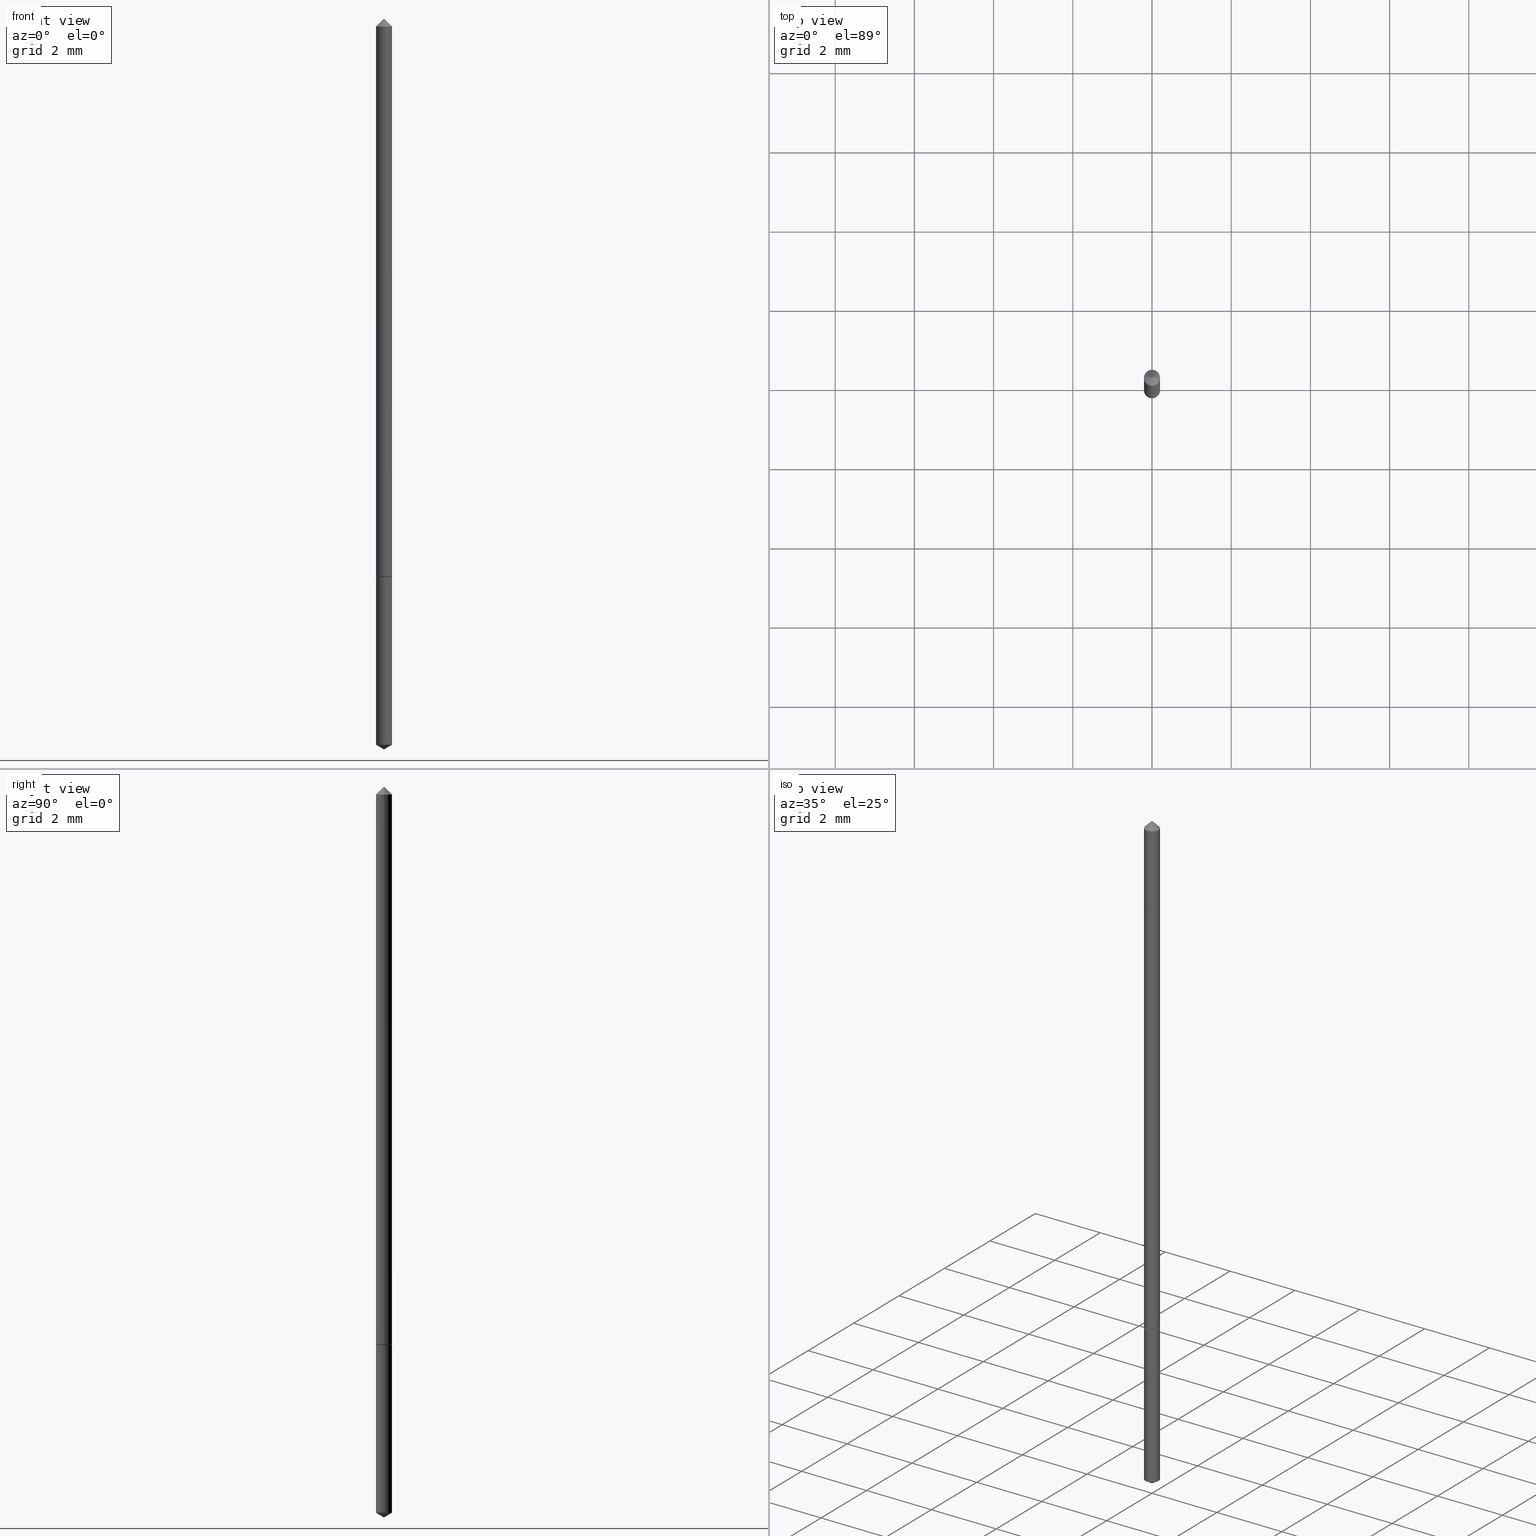
[diagram: canonical four-view strip — front | top / right | iso, engineering-drawing reading convention]
A machine part, canonical four-view strip (front | top / right | iso — engineering-drawing reading convention). The complete STEP part file that produces these views, byte-faithful:
ISO-10303-21;
HEADER;
FILE_DESCRIPTION (( 'STEP AP203' ),
    '1' );
FILE_NAME ('57079.STEP',
    '2024-04-22T21:49:16',
    ( '' ),
    ( '' ),
    'SwSTEP 2.0',
    'SolidWorks 2023',
    '' );
FILE_SCHEMA (( 'CONFIG_CONTROL_DESIGN' ));
ENDSEC;

DATA;
#1 = CARTESIAN_POINT ( 'NONE',  ( 1.414703704378101416E-29, -2.019821954520759698E-15, -0.5785000000000000142 ) ) ;
#2 = DIRECTION ( 'NONE',  ( -2.445468806185136597E-29, 3.491481338843145583E-15, 1.000000000000000000 ) ) ;
#3 = EDGE_LOOP ( 'NONE', ( #114, #8 ) ) ;
#4 = ADVANCED_FACE ( 'NONE', ( #286 ), #190, .T. ) ;
#5 = ORIENTED_EDGE ( 'NONE', *, *, #326, .F. ) ;
#6 = VECTOR ( 'NONE', #196, 39.37007874015748143 ) ;
#7 = ORIENTED_EDGE ( 'NONE', *, *, #63, .F. ) ;
#8 = ORIENTED_EDGE ( 'NONE', *, *, #22, .T. ) ;
#9 = PERSON_AND_ORGANIZATION ( #206, #94 ) ;
#10 = ORIENTED_EDGE ( 'NONE', *, *, #298, .T. ) ;
#11 = AXIS2_PLACEMENT_3D ( 'NONE', #157, #304, #21 ) ;
#12 = PERSON_AND_ORGANIZATION_ROLE ( 'creator' ) ;
#13 = LOCAL_TIME ( 17, 49, 16.00000000000000000, #353 ) ;
#14 = APPROVAL_DATE_TIME ( #264, #362 ) ;
#15 = DIRECTION ( 'NONE',  ( -5.985567269336008333E-15, -0.8571673007021195501, 0.5150380749100419431 ) ) ;
#16 = CARTESIAN_POINT ( 'NONE',  ( 0.000000000000000000, 0.000000000000000000, 0.000000000000000000 ) ) ;
#17 = FACE_OUTER_BOUND ( 'NONE', #279, .T. ) ;
#18 = DIRECTION ( 'NONE',  ( -6.982962677686266711E-15, -1.000000000000000000, 0.000000000000000000 ) ) ;
#19 = CARTESIAN_POINT ( 'NONE',  ( -0.007500000000000090795, -1.963882022164640936E-15, -0.5785000000000000142 ) ) ;
#20 = APPROVAL ( #100, 'UNSPECIFIED' ) ;
#21 = DIRECTION ( 'NONE',  ( -6.982962677686266711E-15, -1.000000000000000000, 0.000000000000000000 ) ) ;
#22 = EDGE_CURVE ( 'NONE', #256, #231, #147, .T. ) ;
#23 = VECTOR ( 'NONE', #73, 39.37007874015748143 ) ;
#24 = DIRECTION ( 'NONE',  ( -6.982962677686267499E-15, -1.000000000000000000, 3.468864327941454980E-15 ) ) ;
#25 = ORIENTED_EDGE ( 'NONE', *, *, #258, .F. ) ;
#26 = CARTESIAN_POINT ( 'NONE',  ( 0.000000000000000000, 0.000000000000000000, 0.000000000000000000 ) ) ;
#27 = ORIENTED_EDGE ( 'NONE', *, *, #263, .F. ) ;
#28 = CARTESIAN_POINT ( 'NONE',  ( -9.446903347794172419E-28, 1.348057181952475766E-13, 38.62007874015748143 ) ) ;
#29 = ORIENTED_EDGE ( 'NONE', *, *, #129, .F. ) ;
#30 = AXIS2_PLACEMENT_3D ( 'NONE', #245, #185, #268 ) ;
#31 = APPROVAL_PERSON_ORGANIZATION ( #241, #163, #322 ) ;
#32 = DIRECTION ( 'NONE',  ( -2.445468806185136597E-29, 3.491481338843145583E-15, 1.000000000000000000 ) ) ;
#33 = ORIENTED_EDGE ( 'NONE', *, *, #112, .T. ) ;
#34 = CARTESIAN_POINT ( 'NONE',  ( 1.413480969975009175E-29, -2.018076213851338589E-15, -0.5780000000000000693 ) ) ;
#35 = ORIENTED_EDGE ( 'NONE', *, *, #194, .F. ) ;
#36 = APPROVAL_ROLE ( '' ) ;
#37 = DIRECTION ( 'NONE',  ( -2.446102391056605084E-29, 3.490574009245791295E-15, 1.000000000000000000 ) ) ;
#38 = MANIFOLD_SOLID_BREP ( 'Body-Move/Copy2[2]', #254 ) ;
#39 = CALENDAR_DATE ( 2024, 22, 4 ) ;
#40 = CARTESIAN_POINT ( 'NONE',  ( 1.414703704378101696E-29, -2.019821954520759698E-15, -0.5785000000000000142 ) ) ;
#41 = DIRECTION ( 'NONE',  ( -2.445468806185136597E-29, 3.491481338843145583E-15, 1.000000000000000000 ) ) ;
#42 = LINE ( 'NONE', #121, #287 ) ;
#43 = CARTESIAN_POINT ( 'NONE',  ( -9.446903347794172419E-28, 1.348057181952475766E-13, 38.62007874015748143 ) ) ;
#44 = VECTOR ( 'NONE', #225, 39.37007874015748143 ) ;
#45 = DIRECTION ( 'NONE',  ( -6.982962677686266711E-15, -1.000000000000000000, 0.000000000000000000 ) ) ;
#46 = ORIENTED_EDGE ( 'NONE', *, *, #88, .T. ) ;
#47 = ADVANCED_FACE ( 'NONE', ( #270 ), #97, .T. ) ;
#48 = CARTESIAN_POINT ( 'NONE',  ( 1.834576793292453953E-29, -2.617930506934343570E-15, -0.7500000000000001110 ) ) ;
#49 = LINE ( 'NONE', #191, #44 ) ;
#50 = DIRECTION ( 'NONE',  ( 2.446102391056604803E-29, -3.490574009245791295E-15, -1.000000000000000000 ) ) ;
#51 = CARTESIAN_POINT ( 'NONE',  ( 5.611197815861457149E-31, -8.224406925062875738E-17, -0.02325000000000014555 ) ) ;
#52 = EDGE_LOOP ( 'NONE', ( #312, #177, #237, #363 ) ) ;
#53 = CC_DESIGN_APPROVAL ( #163, ( #328 ) ) ;
#54 = CARTESIAN_POINT ( 'NONE',  ( 1.414703704378101416E-29, -2.019821954520759698E-15, -0.5785000000000000142 ) ) ;
#55 = ORIENTED_EDGE ( 'NONE', *, *, #248, .T. ) ;
#56 = CARTESIAN_POINT ( 'NONE',  ( 1.414703704378101696E-29, -2.019821954520759698E-15, -0.5785000000000000142 ) ) ;
#57 = PRODUCT_DEFINITION ( 'UNKNOWN', '', #328, #355 ) ;
#58 = DIRECTION ( 'NONE',  ( 1.000000000000000000, -6.982962677686265922E-15, 4.876176775795935793E-29 ) ) ;
#59 = ORIENTED_EDGE ( 'NONE', *, *, #63, .T. ) ;
#60 = ORIENTED_EDGE ( 'NONE', *, *, #263, .T. ) ;
#61 = CARTESIAN_POINT ( 'NONE',  ( 1.414703704378101696E-29, -2.019821954520759698E-15, -0.5785000000000000142 ) ) ;
#62 = APPLICATION_PROTOCOL_DEFINITION ( 'international standard', 'config_control_design', 1994, #297 ) ;
#63 = EDGE_CURVE ( 'NONE', #172, #199, #178, .T. ) ;
#64 = AXIS2_PLACEMENT_3D ( 'NONE', #117, #247, #296 ) ;
#65 = AXIS2_PLACEMENT_3D ( 'NONE', #347, #95, #351 ) ;
#66 = PERSON_AND_ORGANIZATION ( #206, #94 ) ;
#67 = CC_DESIGN_APPROVAL ( #362, ( #57 ) ) ;
#68 = DIRECTION ( 'NONE',  ( -1.000000000000000000, 6.982962677686266711E-15, 0.000000000000000000 ) ) ;
#69 = COORDINATED_UNIVERSAL_TIME_OFFSET ( 5, 0, .BEHIND. ) ;
#70 = DIRECTION ( 'NONE',  ( -6.982962677686267499E-15, -1.000000000000000000, 3.468864327941454980E-15 ) ) ;
#71 = UNCERTAINTY_MEASURE_WITH_UNIT (LENGTH_MEASURE( 1.000000000000000082E-05 ), #207, 'distance_accuracy_value', 'NONE');
#72 = CALENDAR_DATE ( 2024, 22, 4 ) ;
#73 = DIRECTION ( 'NONE',  ( 0.7071067811865450192, -7.319954787623246579E-15, -0.7071067811865500152 ) ) ;
#74 = APPLICATION_CONTEXT ( 'configuration controlled 3d designs of mechanical parts and assemblies' ) ;
#75 = VECTOR ( 'NONE', #15, 39.37007874015748143 ) ;
#76 = CIRCLE ( 'NONE', #139, 0.008000000000000071290 ) ;
#77 = DIRECTION ( 'NONE',  ( -0.7071067811866048602, 7.493145998870562419E-15, 0.7071067811864901742 ) ) ;
#78 = LINE ( 'NONE', #335, #232 ) ;
#79 = AXIS2_PLACEMENT_3D ( 'NONE', #318, #349, #18 ) ;
#80 = CARTESIAN_POINT ( 'NONE',  ( 5.684341886082627079E-17, 0.007999999999997980948, -0.5785000000000000142 ) ) ;
#81 = CC_DESIGN_DATE_AND_TIME_ASSIGNMENT ( #243, #295, ( #219 ) ) ;
#82 = LINE ( 'NONE', #336, #6 ) ;
#83 = ORIENTED_EDGE ( 'NONE', *, *, #305, .T. ) ;
#84 = ADVANCED_FACE ( 'NONE', ( #216 ), #130, .T. ) ;
#85 = DIRECTION ( 'NONE',  ( 1.000000000000000000, -6.982962677686270655E-15, 0.000000000000000000 ) ) ;
#86 = LINE ( 'NONE', #342, #203 ) ;
#87 = ORIENTED_EDGE ( 'NONE', *, *, #112, .F. ) ;
#88 = EDGE_CURVE ( 'NONE', #260, #330, #281, .T. ) ;
#89 = CYLINDRICAL_SURFACE ( 'NONE', #154, 0.008000000000000036596 ) ;
#90 = APPROVAL_DATE_TIME ( #348, #163 ) ;
#91 = LINE ( 'NONE', #153, #357 ) ;
#92 = PERSON_AND_ORGANIZATION ( #206, #94 ) ;
#93 = DIRECTION ( 'NONE',  ( -2.446102391056605084E-29, 3.490574009245791295E-15, 1.000000000000000000 ) ) ;
#94 = ORGANIZATION ( 'UNSPECIFIED', 'UNSPECIFIED', '' ) ;
#95 = DIRECTION ( 'NONE',  ( -2.445468806185136597E-29, 3.491481338843145583E-15, 1.000000000000000000 ) ) ;
#96 = CALENDAR_DATE ( 2024, 22, 4 ) ;
#97 = CYLINDRICAL_SURFACE ( 'NONE', #259, 0.008000000000000000167 ) ;
#98 = ORIENTED_EDGE ( 'NONE', *, *, #129, .T. ) ;
#99 = EDGE_CURVE ( 'NONE', #169, #343, #246, .T. ) ;
#100 = APPROVAL_STATUS ( 'not_yet_approved' ) ;
#101 = LINE ( 'NONE', #329, #198 ) ;
#102 = ORIENTED_EDGE ( 'NONE', *, *, #179, .F. ) ;
#103 = CIRCLE ( 'NONE', #11, 0.008000000000000000167 ) ;
#104 = ADVANCED_FACE ( 'NONE', ( #155 ), #213, .T. ) ;
#105 = DIRECTION ( 'NONE',  ( -0.7071067811865450192, 2.468850131082230634E-15, -0.7071067811865500152 ) ) ;
#106 = ORIENTED_EDGE ( 'NONE', *, *, #156, .T. ) ;
#107 = PRODUCT ( '57079', '57079', '', ( #290 ) ) ;
#108 = DIRECTION ( 'NONE',  ( 1.000000000000000000, -6.982962677686270655E-15, 0.000000000000000000 ) ) ;
#109 = EDGE_LOOP ( 'NONE', ( #35, #141, #289, #128 ) ) ;
#110 = DIRECTION ( 'NONE',  ( 1.000000000000000000, -6.982962677686270655E-15, 0.000000000000000000 ) ) ;
#111 = VERTEX_POINT ( 'NONE', #293 ) ;
#112 = EDGE_CURVE ( 'NONE', #257, #330, #146, .T. ) ;
#113 = DIRECTION ( 'NONE',  ( -2.446102391056605084E-29, 3.490574009245791295E-15, 1.000000000000000000 ) ) ;
#114 = ORIENTED_EDGE ( 'NONE', *, *, #151, .T. ) ;
#115 = COORDINATED_UNIVERSAL_TIME_OFFSET ( 5, 0, .BEHIND. ) ;
#116 = ORIENTED_EDGE ( 'NONE', *, *, #298, .F. ) ;
#117 = CARTESIAN_POINT ( 'NONE',  ( 7.642090019328601786E-31, -1.091087918388490144E-16, -0.03125000000000020123 ) ) ;
#118 = SECURITY_CLASSIFICATION_LEVEL ( 'unclassified' ) ;
#119 = DIRECTION ( 'NONE',  ( -6.982962677686266711E-15, -1.000000000000000000, 0.000000000000000000 ) ) ;
#120 = ADVANCED_FACE ( 'NONE', ( #124 ), #294, .T. ) ;
#121 = CARTESIAN_POINT ( 'NONE',  ( 1.834583221343144864E-29, -2.617930506934343570E-15, -0.7500000000000001110 ) ) ;
#122 = CC_DESIGN_SECURITY_CLASSIFICATION ( #219, ( #328 ) ) ;
#123 = APPLICATION_PROTOCOL_DEFINITION ( 'international standard', 'config_control_design', 1994, #74 ) ;
#124 = FACE_OUTER_BOUND ( 'NONE', #313, .T. ) ;
#125 = CARTESIAN_POINT ( 'NONE',  ( -5.586370142147598546E-17, -0.008000000000002021119, -0.5785000000000000142 ) ) ;
#126 = APPROVAL_ROLE ( '' ) ;
#127 = CARTESIAN_POINT ( 'NONE',  ( -0.008000000000000003636, -1.006749083984283610E-15, -0.03125000000000020123 ) ) ;
#128 = ORIENTED_EDGE ( 'NONE', *, *, #22, .F. ) ;
#129 = EDGE_CURVE ( 'NONE', #197, #169, #291, .T. ) ;
#130 = CONICAL_SURFACE ( 'NONE', #30, 0.008000000000000003636, 0.7853981633974447263 ) ;
#131 = FACE_OUTER_BOUND ( 'NONE', #285, .T. ) ;
#132 = CC_DESIGN_PERSON_AND_ORGANIZATION_ASSIGNMENT ( #66, #300, ( #328 ) ) ;
#133 = CARTESIAN_POINT ( 'NONE',  ( 0.007500000000000090795, -2.072194174603407567E-15, -0.5785000000000000142 ) ) ;
#134 = LOCAL_TIME ( 17, 49, 16.00000000000000000, #145 ) ;
#135 = EDGE_LOOP ( 'NONE', ( #116, #7 ) ) ;
#136 = ORIENTED_EDGE ( 'NONE', *, *, #339, .T. ) ;
#137 = FACE_OUTER_BOUND ( 'NONE', #175, .T. ) ;
#138 = DIRECTION ( 'NONE',  ( -2.445468806185136597E-29, 3.491481338843145583E-15, 1.000000000000000000 ) ) ;
#139 = AXIS2_PLACEMENT_3D ( 'NONE', #34, #2, #108 ) ;
#140 = DIRECTION ( 'NONE',  ( -2.446102391056605084E-29, 3.490574009245791295E-15, 1.000000000000000000 ) ) ;
#141 = ORIENTED_EDGE ( 'NONE', *, *, #258, .T. ) ;
#142 =( NAMED_UNIT ( * ) SI_UNIT ( $, .STERADIAN. ) SOLID_ANGLE_UNIT ( ) );
#143 = CC_DESIGN_PERSON_AND_ORGANIZATION_ASSIGNMENT ( #9, #205, ( #219 ) ) ;
#144 = EDGE_LOOP ( 'NONE', ( #337, #136, #102, #341 ) ) ;
#145 = COORDINATED_UNIVERSAL_TIME_OFFSET ( 5, 0, .BEHIND. ) ;
#146 = LINE ( 'NONE', #316, #23 ) ;
#147 = CIRCLE ( 'NONE', #334, 0.008000000000000000167 ) ;
#148 = AXIS2_PLACEMENT_3D ( 'NONE', #361, #331, #306 ) ;
#149 =( NAMED_UNIT ( * ) PLANE_ANGLE_UNIT ( ) SI_UNIT ( $, .RADIAN. ) );
#150 = CARTESIAN_POINT ( 'NONE',  ( 7.642090019328601786E-31, -1.091087918388490144E-16, -0.03125000000000020123 ) ) ;
#151 = EDGE_CURVE ( 'NONE', #231, #256, #314, .T. ) ;
#152 = ADVANCED_BREP_SHAPE_REPRESENTATION ( '57079', ( #158, #38, #364 ), #282 ) ;
#153 = CARTESIAN_POINT ( 'NONE',  ( -5.586370142147598546E-17, -0.008000000000002021119, -0.5785000000000000142 ) ) ;
#154 = AXIS2_PLACEMENT_3D ( 'NONE', #218, #278, #333 ) ;
#155 = FACE_OUTER_BOUND ( 'NONE', #109, .T. ) ;
#156 = EDGE_CURVE ( 'NONE', #197, #343, #42, .T. ) ;
#157 = CARTESIAN_POINT ( 'NONE',  ( 1.822452131669149345E-29, -2.601676609426758371E-15, -0.7451931150477797416 ) ) ;
#158 = MANIFOLD_SOLID_BREP ( 'Body-Move/Copy2[1]', #345 ) ;
#159 = CIRCLE ( 'NONE', #228, 0.008000000000000003636 ) ;
#160 = AXIS2_PLACEMENT_3D ( 'NONE', #28, #140, #24 ) ;
#161 = CARTESIAN_POINT ( 'NONE',  ( -0.008000000000000071290, -1.961232794990530130E-15, -0.5780000000000000693 ) ) ;
#162 = EDGE_LOOP ( 'NONE', ( #10, #283, #5, #27 ) ) ;
#163 = APPROVAL ( #186, 'UNSPECIFIED' ) ;
#164 = DATE_AND_TIME ( #226, #204 ) ;
#165 = CARTESIAN_POINT ( 'NONE',  ( 1.414703704378101696E-29, -2.019821954520759698E-15, -0.5785000000000000142 ) ) ;
#166 = CARTESIAN_POINT ( 'NONE',  ( -0.008000000000000071290, -1.961232794990530130E-15, -0.5780000000000000693 ) ) ;
#167 = EDGE_CURVE ( 'NONE', #169, #231, #91, .T. ) ;
#168 = VECTOR ( 'NONE', #77, 39.37007874015748143 ) ;
#169 = VERTEX_POINT ( 'NONE', #323 ) ;
#170 = LOCAL_TIME ( 17, 49, 16.00000000000000000, #69 ) ;
#171 = CARTESIAN_POINT ( 'NONE',  ( 5.684341886082623381E-17, 0.007999999999997398081, -0.7451931150477797416 ) ) ;
#172 = VERTEX_POINT ( 'NONE', #19 ) ;
#173 = ADVANCED_FACE ( 'NONE', ( #17 ), #327, .T. ) ;
#174 = CARTESIAN_POINT ( 'NONE',  ( 1.413480969975009175E-29, -2.018076213851338589E-15, -0.5780000000000000693 ) ) ;
#175 = EDGE_LOOP ( 'NONE', ( #227, #83, #55, #309 ) ) ;
#176 = DIRECTION ( 'NONE',  ( 1.000000000000000000, -6.982962677686280910E-15, 0.000000000000000000 ) ) ;
#177 = ORIENTED_EDGE ( 'NONE', *, *, #194, .T. ) ;
#178 = CIRCLE ( 'NONE', #65, 0.007500000000000090795 ) ;
#179 = EDGE_CURVE ( 'NONE', #330, #260, #159, .T. ) ;
#180 = ORIENTED_EDGE ( 'NONE', *, *, #305, .F. ) ;
#181 = APPROVAL_STATUS ( 'not_yet_approved' ) ;
#182 = CONICAL_SURFACE ( 'NONE', #148, 0.008000000000000071290, 0.7853981633975294363 ) ;
#183 = CIRCLE ( 'NONE', #265, 0.007500000000000090795 ) ;
#184 = DIRECTION ( 'NONE',  ( 1.000000000000000000, -6.982962677686267499E-15, 4.876176775795935793E-29 ) ) ;
#185 = DIRECTION ( 'NONE',  ( 2.445468806185136597E-29, -3.491481338843145583E-15, -1.000000000000000000 ) ) ;
#186 = APPROVAL_STATUS ( 'not_yet_approved' ) ;
#187 = DIRECTION ( 'NONE',  ( -2.445468806185136597E-29, 3.491481338843145583E-15, 1.000000000000000000 ) ) ;
#188 = PERSON_AND_ORGANIZATION_ROLE ( 'creator' ) ;
#189 = CARTESIAN_POINT ( 'NONE',  ( 1.414703704378101696E-29, -2.019821954520759698E-15, -0.5785000000000000142 ) ) ;
#190 = CONICAL_SURFACE ( 'NONE', #251, 0.008000000000000071290, 0.7853981633975294363 ) ;
#191 = CARTESIAN_POINT ( 'NONE',  ( 0.008000000000000036596, -5.586370142149039450E-17, 3.900941420636766553E-31 ) ) ;
#192 = DIRECTION ( 'NONE',  ( 6.982962677686265922E-15, 1.000000000000000000, -3.490574009245791295E-15 ) ) ;
#193 = ADVANCED_FACE ( 'NONE', ( #239 ), #89, .T. ) ;
#194 = EDGE_CURVE ( 'NONE', #343, #256, #78, .T. ) ;
#195 = FACE_OUTER_BOUND ( 'NONE', #135, .T. ) ;
#196 = DIRECTION ( 'NONE',  ( -2.445468806185136877E-29, 3.491481338843145188E-15, 1.000000000000000000 ) ) ;
#197 = VERTEX_POINT ( 'NONE', #48 ) ;
#198 = VECTOR ( 'NONE', #229, 39.37007874015748143 ) ;
#199 = VERTEX_POINT ( 'NONE', #133 ) ;
#200 = ORIENTED_EDGE ( 'NONE', *, *, #99, .F. ) ;
#201 = CC_DESIGN_PERSON_AND_ORGANIZATION_ASSIGNMENT ( #346, #212, ( #107 ) ) ;
#202 = ORIENTED_EDGE ( 'NONE', *, *, #280, .F. ) ;
#203 = VECTOR ( 'NONE', #105, 39.37007874015748143 ) ;
#204 = LOCAL_TIME ( 17, 49, 16.00000000000000000, #360 ) ;
#205 = PERSON_AND_ORGANIZATION_ROLE ( 'classification_officer' ) ;
#206 = PERSON ( 'UNSPECIFIED', 'UNSPECIFIED', 'UNSPECIFIED', ('UNSPECIFIED'), ('UNSPECIFIED'), ('UNSPECIFIED') ) ;
#207 =( CONVERSION_BASED_UNIT ( 'INCH', #350 ) LENGTH_UNIT ( ) NAMED_UNIT ( #252 ) );
#208 = DATE_AND_TIME ( #72, #13 ) ;
#209 = CC_DESIGN_PERSON_AND_ORGANIZATION_ASSIGNMENT ( #324, #188, ( #328 ) ) ;
#210 = DIRECTION ( 'NONE',  ( -2.446102391056605084E-29, 3.490574009245791295E-15, 1.000000000000000000 ) ) ;
#211 = AXIS2_PLACEMENT_3D ( 'NONE', #174, #32, #110 ) ;
#212 = PERSON_AND_ORGANIZATION_ROLE ( 'design_owner' ) ;
#213 = CYLINDRICAL_SURFACE ( 'NONE', #277, 0.008000000000000000167 ) ;
#214 = ADVANCED_FACE ( 'NONE', ( #224 ), #303, .F. ) ;
#215 = CALENDAR_DATE ( 2024, 22, 4 ) ;
#216 = FACE_OUTER_BOUND ( 'NONE', #356, .T. ) ;
#217 = EDGE_CURVE ( 'NONE', #172, #273, #275, .T. ) ;
#218 = CARTESIAN_POINT ( 'NONE',  ( 0.000000000000000000, 0.000000000000000000, 0.000000000000000000 ) ) ;
#219 = SECURITY_CLASSIFICATION ( '', '', #118 ) ;
#220 = SHAPE_DEFINITION_REPRESENTATION ( #253, #152 ) ;
#221 = EDGE_LOOP ( 'NONE', ( #29, #106, #200 ) ) ;
#222 = DIRECTION ( 'NONE',  ( -2.438088387897960049E-29, 3.491481338843145188E-15, 1.000000000000000000 ) ) ;
#223 = ADVANCED_FACE ( 'NONE', ( #195 ), #308, .F. ) ;
#224 = FACE_OUTER_BOUND ( 'NONE', #3, .T. ) ;
#225 = DIRECTION ( 'NONE',  ( -2.445468806185136877E-29, 3.491481338843145188E-15, 1.000000000000000000 ) ) ;
#226 = CALENDAR_DATE ( 2024, 22, 4 ) ;
#227 = ORIENTED_EDGE ( 'NONE', *, *, #339, .F. ) ;
#228 = AXIS2_PLACEMENT_3D ( 'NONE', #352, #187, #299 ) ;
#229 = DIRECTION ( 'NONE',  ( 0.7071067811866048602, -2.468850131082857384E-15, 0.7071067811864901742 ) ) ;
#230 = DIRECTION ( 'NONE',  ( -2.445468806185136597E-29, 3.491481338843145583E-15, 1.000000000000000000 ) ) ;
#231 = VERTEX_POINT ( 'NONE', #125 ) ;
#232 = VECTOR ( 'NONE', #250, 39.37007874015748143 ) ;
#233 = FACE_OUTER_BOUND ( 'NONE', #221, .T. ) ;
#234 = CARTESIAN_POINT ( 'NONE',  ( 1.413480969975009175E-29, -2.018076213851338589E-15, -0.5780000000000000693 ) ) ;
#235 = APPROVAL_PERSON_ORGANIZATION ( #92, #362, #36 ) ;
#236 = CC_DESIGN_DATE_AND_TIME_ASSIGNMENT ( #208, #266, ( #57 ) ) ;
#237 = ORIENTED_EDGE ( 'NONE', *, *, #151, .F. ) ;
#238 = DIRECTION ( 'NONE',  ( 0.000000000000000000, 0.000000000000000000, 1.000000000000000000 ) ) ;
#239 = FACE_OUTER_BOUND ( 'NONE', #144, .T. ) ;
#240 = AXIS2_PLACEMENT_3D ( 'NONE', #150, #267, #68 ) ;
#241 = PERSON_AND_ORGANIZATION ( #206, #94 ) ;
#242 = CARTESIAN_POINT ( 'NONE',  ( 1.833843735596164968E-29, -2.618980287278482096E-15, -0.7500000000000001110 ) ) ;
#243 = DATE_AND_TIME ( #39, #311 ) ;
#244 = DIRECTION ( 'NONE',  ( -2.446102391056605084E-29, 3.490574009245791295E-15, 1.000000000000000000 ) ) ;
#245 = CARTESIAN_POINT ( 'NONE',  ( 7.642090019328601786E-31, -1.091087918388490144E-16, -0.03125000000000020123 ) ) ;
#246 = CIRCLE ( 'NONE', #79, 0.008000000000000000167 ) ;
#247 = DIRECTION ( 'NONE',  ( -2.445468806185136597E-29, 3.491481338843145583E-15, 1.000000000000000000 ) ) ;
#248 = EDGE_CURVE ( 'NONE', #111, #330, #49, .T. ) ;
#249 = PERSON_AND_ORGANIZATION ( #206, #94 ) ;
#250 = DIRECTION ( 'NONE',  ( -2.446102391056605084E-29, 3.490574009245791295E-15, 1.000000000000000000 ) ) ;
#251 = AXIS2_PLACEMENT_3D ( 'NONE', #234, #138, #85 ) ;
#252 = DIMENSIONAL_EXPONENTS ( 1.000000000000000000, 0.000000000000000000, 0.000000000000000000, 0.000000000000000000, 0.000000000000000000, 0.000000000000000000, 0.000000000000000000 ) ;
#253 = PRODUCT_DEFINITION_SHAPE ( 'NONE', 'NONE',  #57 ) ;
#254 = CLOSED_SHELL ( 'NONE', ( #84, #193, #4, #223, #269, #359, #120 ) ) ;
#255 = CARTESIAN_POINT ( 'NONE',  ( 0.008000000000000003636, -1.649724932603391870E-16, -0.03125000000000020123 ) ) ;
#256 = VERTEX_POINT ( 'NONE', #80 ) ;
#257 = VERTEX_POINT ( 'NONE', #51 ) ;
#258 = EDGE_CURVE ( 'NONE', #343, #169, #103, .T. ) ;
#259 = AXIS2_PLACEMENT_3D ( 'NONE', #40, #93, #45 ) ;
#260 = VERTEX_POINT ( 'NONE', #127 ) ;
#261 = PERSON_AND_ORGANIZATION ( #206, #94 ) ;
#262 = ORIENTED_EDGE ( 'NONE', *, *, #280, .T. ) ;
#263 = EDGE_CURVE ( 'NONE', #199, #111, #101, .T. ) ;
#264 = DATE_AND_TIME ( #96, #134 ) ;
#265 = AXIS2_PLACEMENT_3D ( 'NONE', #54, #230, #176 ) ;
#266 = DATE_TIME_ROLE ( 'creation_date' ) ;
#267 = DIRECTION ( 'NONE',  ( 2.445468806185136597E-29, -3.491481338843145583E-15, -1.000000000000000000 ) ) ;
#268 = DIRECTION ( 'NONE',  ( -1.000000000000000000, 6.982962677686266711E-15, 0.000000000000000000 ) ) ;
#269 = ADVANCED_FACE ( 'NONE', ( #131 ), #182, .T. ) ;
#270 = FACE_OUTER_BOUND ( 'NONE', #52, .T. ) ;
#271 = AXIS2_PLACEMENT_3D ( 'NONE', #1, #222, #58 ) ;
#272 = DIRECTION ( 'NONE',  ( 6.090539988449844700E-15, 0.8571673007021232138, 0.5150380749100359479 ) ) ;
#273 = VERTEX_POINT ( 'NONE', #161 ) ;
#274 = APPROVAL_DATE_TIME ( #164, #20 ) ;
#275 = LINE ( 'NONE', #166, #168 ) ;
#276 = CC_DESIGN_PERSON_AND_ORGANIZATION_ASSIGNMENT ( #261, #12, ( #57 ) ) ;
#277 = AXIS2_PLACEMENT_3D ( 'NONE', #61, #210, #325 ) ;
#278 = DIRECTION ( 'NONE',  ( -2.445468806185136597E-29, 3.491481338843145583E-15, 1.000000000000000000 ) ) ;
#279 = EDGE_LOOP ( 'NONE', ( #344, #98, #25 ) ) ;
#280 = EDGE_CURVE ( 'NONE', #257, #260, #86, .T. ) ;
#281 = CIRCLE ( 'NONE', #64, 0.008000000000000003636 ) ;
#282 =( GEOMETRIC_REPRESENTATION_CONTEXT ( 3 ) GLOBAL_UNCERTAINTY_ASSIGNED_CONTEXT ( ( #71 ) ) GLOBAL_UNIT_ASSIGNED_CONTEXT ( ( #207, #149, #142 ) ) REPRESENTATION_CONTEXT ( 'NONE', 'WORKASPACE' ) );
#283 = ORIENTED_EDGE ( 'NONE', *, *, #217, .T. ) ;
#284 = CYLINDRICAL_SURFACE ( 'NONE', #302, 0.008000000000000036596 ) ;
#285 = EDGE_LOOP ( 'NONE', ( #332, #59, #60, #180 ) ) ;
#286 = FACE_OUTER_BOUND ( 'NONE', #162, .T. ) ;
#287 = VECTOR ( 'NONE', #272, 39.37007874015748143 ) ;
#288 = ORIENTED_EDGE ( 'NONE', *, *, #179, .T. ) ;
#289 = ORIENTED_EDGE ( 'NONE', *, *, #167, .T. ) ;
#290 = MECHANICAL_CONTEXT ( 'NONE', #297, 'mechanical' ) ;
#291 = LINE ( 'NONE', #242, #75 ) ;
#292 = DIRECTION ( 'NONE',  ( 1.000000000000000000, 0.000000000000000000, 0.000000000000000000 ) ) ;
#293 = CARTESIAN_POINT ( 'NONE',  ( 0.008000000000000071290, -2.073939915272829070E-15, -0.5780000000000000693 ) ) ;
#294 = CONICAL_SURFACE ( 'NONE', #240, 0.008000000000000003636, 0.7853981633974447263 ) ;
#295 = DATE_TIME_ROLE ( 'classification_date' ) ;
#296 = DIRECTION ( 'NONE',  ( 1.000000000000000000, -6.982962677686268288E-15, 0.000000000000000000 ) ) ;
#297 = APPLICATION_CONTEXT ( 'configuration controlled 3d designs of mechanical parts and assemblies' ) ;
#298 = EDGE_CURVE ( 'NONE', #199, #172, #183, .T. ) ;
#299 = DIRECTION ( 'NONE',  ( 1.000000000000000000, -6.982962677686268288E-15, 0.000000000000000000 ) ) ;
#300 = PERSON_AND_ORGANIZATION_ROLE ( 'design_supplier' ) ;
#301 = DIRECTION ( 'NONE',  ( -2.446102391056605084E-29, 3.490574009245791295E-15, 1.000000000000000000 ) ) ;
#302 = AXIS2_PLACEMENT_3D ( 'NONE', #26, #41, #184 ) ;
#303 = PLANE ( 'NONE',  #338 ) ;
#304 = DIRECTION ( 'NONE',  ( -2.446102391056605084E-29, 3.490574009245791295E-15, 1.000000000000000000 ) ) ;
#305 = EDGE_CURVE ( 'NONE', #273, #111, #321, .T. ) ;
#306 = DIRECTION ( 'NONE',  ( 1.000000000000000000, -6.982962677686270655E-15, 0.000000000000000000 ) ) ;
#307 = APPROVAL_PERSON_ORGANIZATION ( #249, #20, #126 ) ;
#308 = PLANE ( 'NONE',  #271 ) ;
#309 = ORIENTED_EDGE ( 'NONE', *, *, #88, .F. ) ;
#310 = AXIS2_PLACEMENT_3D ( 'NONE', #189, #301, #119 ) ;
#311 = LOCAL_TIME ( 17, 49, 16.00000000000000000, #115 ) ;
#312 = ORIENTED_EDGE ( 'NONE', *, *, #99, .T. ) ;
#313 = EDGE_LOOP ( 'NONE', ( #87, #262, #46 ) ) ;
#314 = CIRCLE ( 'NONE', #310, 0.008000000000000000167 ) ;
#315 = PRODUCT_RELATED_PRODUCT_CATEGORY ( 'detail', '', ( #107 ) ) ;
#316 = CARTESIAN_POINT ( 'NONE',  ( 0.008000000000000003636, -1.639927758210213066E-16, -0.03125000000000020123 ) ) ;
#317 =( LENGTH_UNIT ( ) NAMED_UNIT ( * ) SI_UNIT ( $, .METRE. ) );
#318 = CARTESIAN_POINT ( 'NONE',  ( 1.822452131669149345E-29, -2.601676609426758371E-15, -0.7451931150477797416 ) ) ;
#319 = AXIS2_PLACEMENT_3D ( 'NONE', #43, #244, #70 ) ;
#320 = ADVANCED_FACE ( 'NONE', ( #233 ), #340, .T. ) ;
#321 = CIRCLE ( 'NONE', #211, 0.008000000000000071290 ) ;
#322 = APPROVAL_ROLE ( '' ) ;
#323 = CARTESIAN_POINT ( 'NONE',  ( -5.586370142147189325E-17, -0.008000000000002600517, -0.7451931150477797416 ) ) ;
#324 = PERSON_AND_ORGANIZATION ( #206, #94 ) ;
#325 = DIRECTION ( 'NONE',  ( -6.982962677686266711E-15, -1.000000000000000000, 0.000000000000000000 ) ) ;
#326 = EDGE_CURVE ( 'NONE', #111, #273, #76, .T. ) ;
#327 = CONICAL_SURFACE ( 'NONE', #319, 65.52281426577106060, 1.029744258676672297 ) ;
#328 = PRODUCT_DEFINITION_FORMATION_WITH_SPECIFIED_SOURCE ( 'ANY', '', #107, .NOT_KNOWN. ) ;
#329 = CARTESIAN_POINT ( 'NONE',  ( 0.008000000000000071290, -2.073939915272829070E-15, -0.5780000000000000693 ) ) ;
#330 = VERTEX_POINT ( 'NONE', #255 ) ;
#331 = DIRECTION ( 'NONE',  ( -2.445468806185136597E-29, 3.491481338843145583E-15, 1.000000000000000000 ) ) ;
#332 = ORIENTED_EDGE ( 'NONE', *, *, #217, .F. ) ;
#333 = DIRECTION ( 'NONE',  ( 1.000000000000000000, -6.982962677686267499E-15, 4.876176775795935793E-29 ) ) ;
#334 = AXIS2_PLACEMENT_3D ( 'NONE', #56, #113, #354 ) ;
#335 = CARTESIAN_POINT ( 'NONE',  ( 5.684341886082215392E-17, 0.007999999999997980948, -0.5785000000000000142 ) ) ;
#336 = CARTESIAN_POINT ( 'NONE',  ( -0.008000000000000036596, 5.684341886080827490E-17, -3.935148072203943060E-31 ) ) ;
#337 = ORIENTED_EDGE ( 'NONE', *, *, #326, .T. ) ;
#338 = AXIS2_PLACEMENT_3D ( 'NONE', #165, #50, #192 ) ;
#339 = EDGE_CURVE ( 'NONE', #273, #260, #82, .T. ) ;
#340 = CONICAL_SURFACE ( 'NONE', #160, 65.52281426577106060, 1.029744258676672297 ) ;
#341 = ORIENTED_EDGE ( 'NONE', *, *, #248, .F. ) ;
#342 = CARTESIAN_POINT ( 'NONE',  ( -0.008000000000000003636, -5.324509041735884789E-17, -0.03125000000000020123 ) ) ;
#343 = VERTEX_POINT ( 'NONE', #171 ) ;
#344 = ORIENTED_EDGE ( 'NONE', *, *, #156, .F. ) ;
#345 = CLOSED_SHELL ( 'NONE', ( #47, #320, #173, #104, #214 ) ) ;
#346 = PERSON_AND_ORGANIZATION ( #206, #94 ) ;
#347 = CARTESIAN_POINT ( 'NONE',  ( 1.414703704378101416E-29, -2.019821954520759698E-15, -0.5785000000000000142 ) ) ;
#348 = DATE_AND_TIME ( #215, #170 ) ;
#349 = DIRECTION ( 'NONE',  ( -2.446102391056605084E-29, 3.490574009245791295E-15, 1.000000000000000000 ) ) ;
#350 = LENGTH_MEASURE_WITH_UNIT ( LENGTH_MEASURE( 0.02539999999999999897 ), #317 );
#351 = DIRECTION ( 'NONE',  ( 1.000000000000000000, -6.982962677686280910E-15, 0.000000000000000000 ) ) ;
#352 = CARTESIAN_POINT ( 'NONE',  ( 7.642090019328601786E-31, -1.091087918388490144E-16, -0.03125000000000020123 ) ) ;
#353 = COORDINATED_UNIVERSAL_TIME_OFFSET ( 5, 0, .BEHIND. ) ;
#354 = DIRECTION ( 'NONE',  ( -6.982962677686266711E-15, -1.000000000000000000, 0.000000000000000000 ) ) ;
#355 = DESIGN_CONTEXT ( 'detailed design', #74, 'design' ) ;
#356 = EDGE_LOOP ( 'NONE', ( #202, #33, #288 ) ) ;
#357 = VECTOR ( 'NONE', #37, 39.37007874015748143 ) ;
#358 = CC_DESIGN_APPROVAL ( #20, ( #219 ) ) ;
#359 = ADVANCED_FACE ( 'NONE', ( #137 ), #284, .T. ) ;
#360 = COORDINATED_UNIVERSAL_TIME_OFFSET ( 5, 0, .BEHIND. ) ;
#361 = CARTESIAN_POINT ( 'NONE',  ( 1.413480969975009175E-29, -2.018076213851338589E-15, -0.5780000000000000693 ) ) ;
#362 = APPROVAL ( #181, 'UNSPECIFIED' ) ;
#363 = ORIENTED_EDGE ( 'NONE', *, *, #167, .F. ) ;
#364 = AXIS2_PLACEMENT_3D ( 'NONE', #16, #238, #292 ) ;
ENDSEC;
END-ISO-10303-21;
